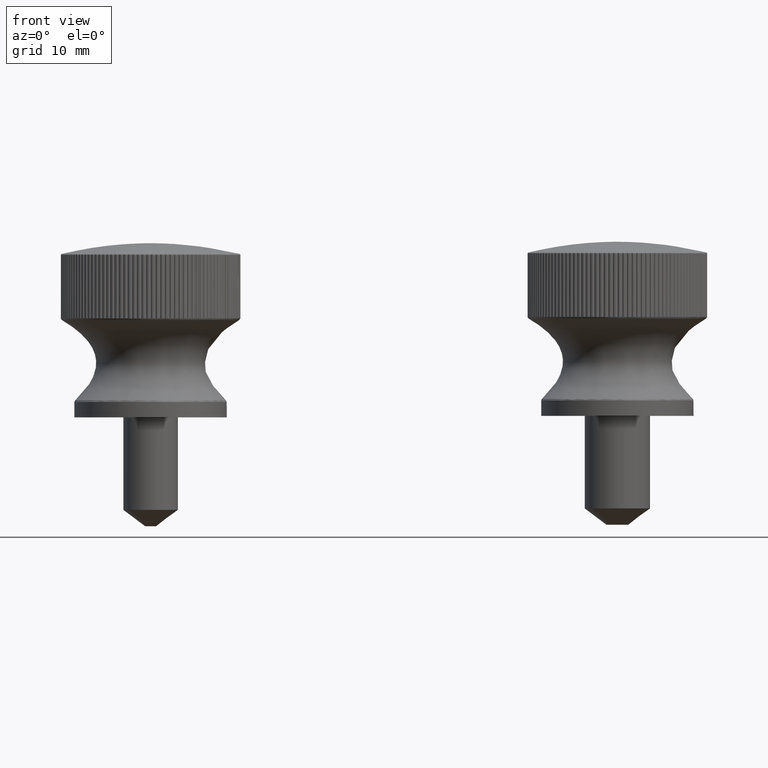
[diagram: clean part render]
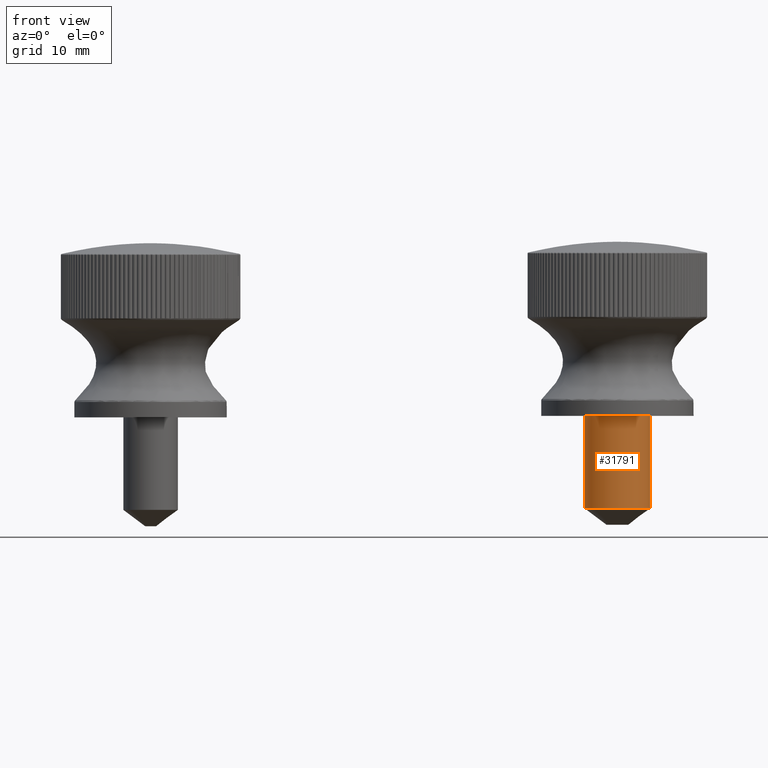
[diagram: same view with one face highlighted and labeled with its STEP entity id]
A machine part, front view. The second image highlights one B-rep face of the part: STEP entity #31791.
In plain terms, the highlighted cylindrical surface (bore or boss wall) has radius 3 mm, axis along (-0, -0, -1).
Its self-contained STEP definition (entity closure, byte-faithful):
#5575=CYLINDRICAL_SURFACE('',#34817,3.);
#6062=FACE_BOUND('',#9339,.T.);
#7155=FACE_OUTER_BOUND('',#9338,.T.);
#9338=EDGE_LOOP('',(#25635));
#9339=EDGE_LOOP('',(#25636));
#11515=CIRCLE('',#34815,3.);
#11517=CIRCLE('',#34818,3.);
#14051=VERTEX_POINT('',#60810);
#14053=VERTEX_POINT('',#60815);
#18034=EDGE_CURVE('',#14051,#14051,#11515,.T.);
#18036=EDGE_CURVE('',#14053,#14053,#11517,.T.);
#25635=ORIENTED_EDGE('',*,*,#18036,.F.);
#25636=ORIENTED_EDGE('',*,*,#18034,.F.);
#31791=ADVANCED_FACE('',(#7155,#6062),#5575,.T.);
#34815=AXIS2_PLACEMENT_3D('',#60811,#41096,#41097);
#34817=AXIS2_PLACEMENT_3D('',#60814,#41100,#41101);
#34818=AXIS2_PLACEMENT_3D('',#60816,#41102,#41103);
#41096=DIRECTION('center_axis',(0.,0.,-1.));
#41097=DIRECTION('ref_axis',(1.,0.,0.));
#41100=DIRECTION('center_axis',(0.,0.,-1.));
#41101=DIRECTION('ref_axis',(1.,0.,0.));
#41102=DIRECTION('center_axis',(0.,0.,1.));
#41103=DIRECTION('ref_axis',(1.,0.,0.));
#60810=CARTESIAN_POINT('',(-3.,3.67394039744206E-16,-8.5));
#60811=CARTESIAN_POINT('Origin',(0.,0.,-8.5));
#60814=CARTESIAN_POINT('Origin',(0.,0.,0.));
#60815=CARTESIAN_POINT('',(-3.,3.67394039744206E-16,0.));
#60816=CARTESIAN_POINT('Origin',(0.,0.,0.));